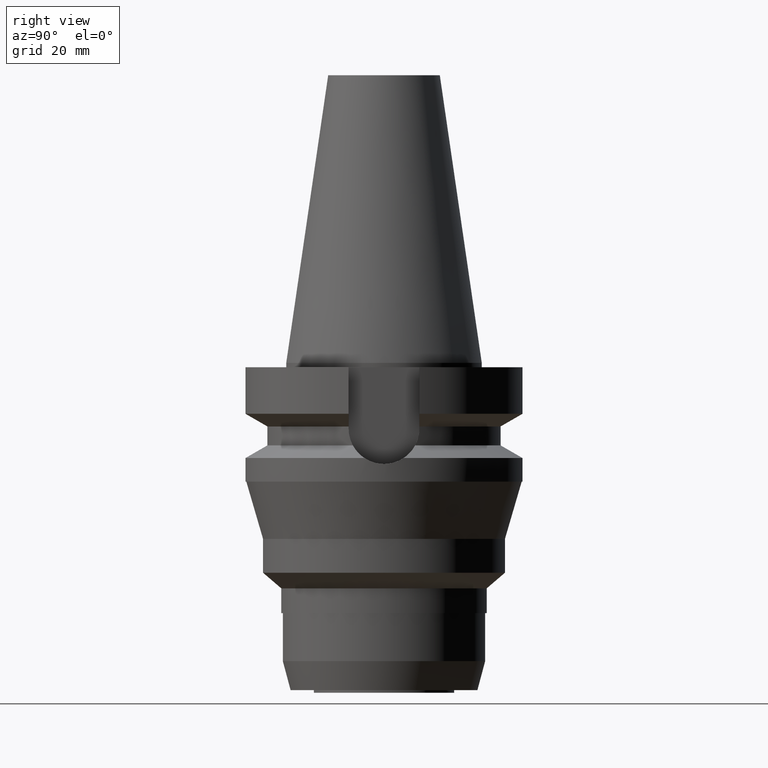
[diagram: clean part render]
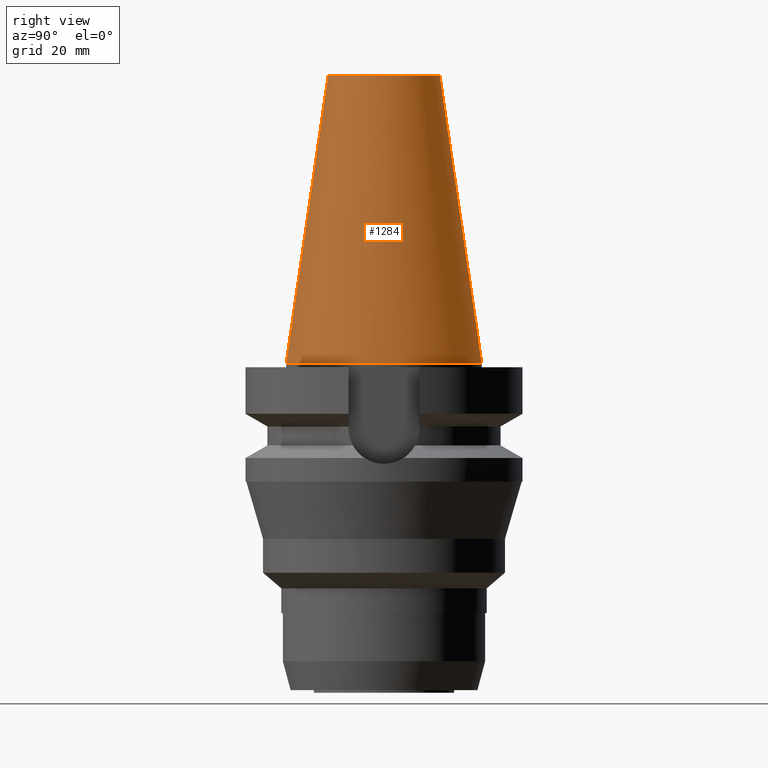
[diagram: same view with one face highlighted and labeled with its STEP entity id]
A machine part, right view. The second image highlights one B-rep face of the part: STEP entity #1284.
In plain terms, the highlighted conical surface has half-angle 8.297 deg.
Its self-contained STEP definition (entity closure, byte-faithful):
#17=DIRECTION('',(0.E0,1.443043893540E-1,-9.895333461856E-1));
#18=VECTOR('',#17,6.609175956738E1);
#19=CARTESIAN_POINT('',(0.E0,1.268766899430E1,6.54E1));
#20=LINE('',#19,#18);
#25=CARTESIAN_POINT('',(0.E0,0.E0,1.136868377216E-13));
#26=DIRECTION('',(0.E0,0.E0,-1.E0));
#27=DIRECTION('',(0.E0,1.E0,0.E0));
#28=AXIS2_PLACEMENT_3D('',#25,#26,#27);
#33=DIRECTION('',(0.E0,-1.443043893540E-1,-9.895333461856E-1));
#34=VECTOR('',#33,6.609175956738E1);
#35=CARTESIAN_POINT('',(0.E0,-1.268766899430E1,6.54E1));
#36=LINE('',#35,#34);
#56=CARTESIAN_POINT('',(0.E0,0.E0,6.54E1));
#57=DIRECTION('',(0.E0,0.E0,-1.E0));
#58=DIRECTION('',(0.E0,1.E0,0.E0));
#59=AXIS2_PLACEMENT_3D('',#56,#57,#58);
#1100=CARTESIAN_POINT('',(0.E0,1.268766899430E1,6.54E1));
#1101=CARTESIAN_POINT('',(0.E0,2.2225E1,1.563194018672E-13));
#1102=VERTEX_POINT('',#1100);
#1103=VERTEX_POINT('',#1101);
#1104=CARTESIAN_POINT('',(0.E0,-2.2225E1,1.136868377216E-13));
#1105=VERTEX_POINT('',#1104);
#1106=CARTESIAN_POINT('',(0.E0,-1.268766899430E1,6.54E1));
#1107=VERTEX_POINT('',#1106);
#1269=CARTESIAN_POINT('',(0.E0,0.E0,3.27E1));
#1270=DIRECTION('',(0.E0,0.E0,-1.E0));
#1271=DIRECTION('',(0.E0,-1.E0,0.E0));
#1272=AXIS2_PLACEMENT_3D('',#1269,#1270,#1271);
#1273=CONICAL_SURFACE('',#1272,1.745633449715E1,8.297E0);
#1275=ORIENTED_EDGE('',*,*,#1274,.T.);
#1277=ORIENTED_EDGE('',*,*,#1276,.T.);
#1279=ORIENTED_EDGE('',*,*,#1278,.F.);
#1281=ORIENTED_EDGE('',*,*,#1280,.F.);
#1282=EDGE_LOOP('',(#1275,#1277,#1279,#1281));
#1283=FACE_OUTER_BOUND('',#1282,.F.);
#29=CIRCLE('',#28,2.2225E1);
#60=CIRCLE('',#59,1.268766899430E1);
#1274=EDGE_CURVE('',#1102,#1103,#20,.T.);
#1276=EDGE_CURVE('',#1103,#1105,#29,.T.);
#1278=EDGE_CURVE('',#1107,#1105,#36,.T.);
#1280=EDGE_CURVE('',#1102,#1107,#60,.T.);
#1284=ADVANCED_FACE('',(#1283),#1273,.T.);